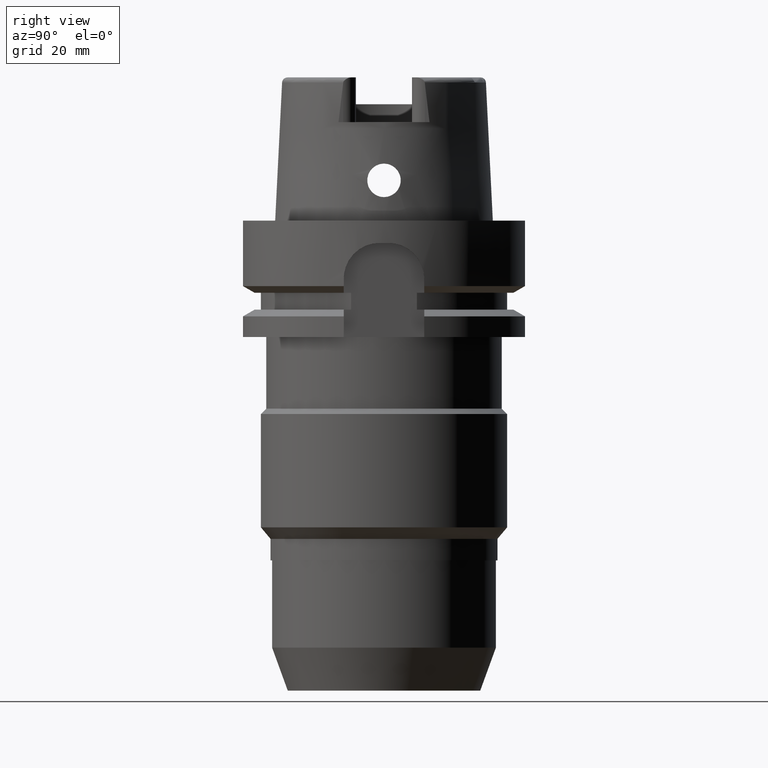
[diagram: clean part render]
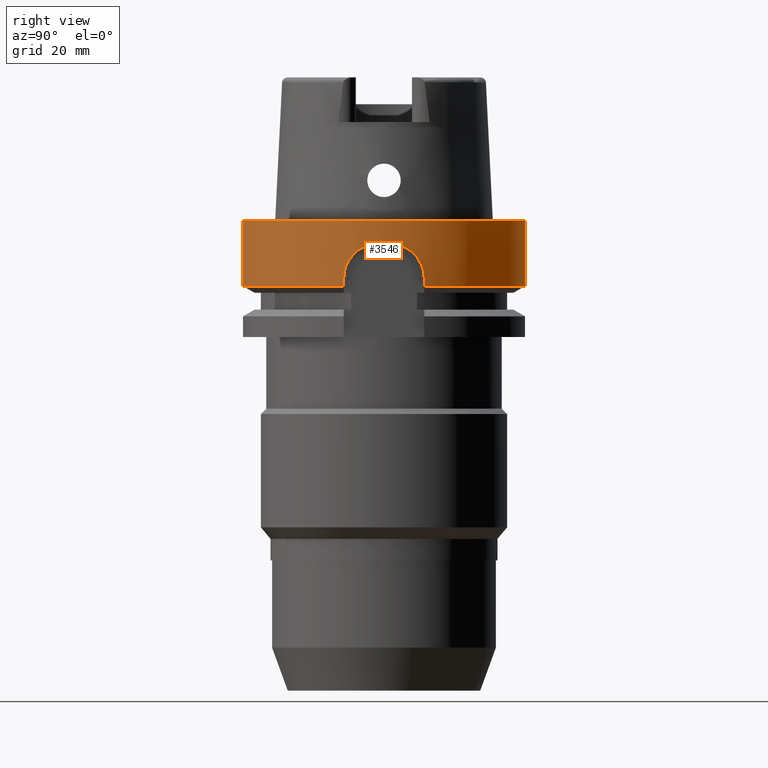
[diagram: same view with one face highlighted and labeled with its STEP entity id]
A machine part, right view. The second image highlights one B-rep face of the part: STEP entity #3546.
In plain terms, the highlighted cylindrical surface (partial cylindrical patch) has radius 31.5 mm, axis along (0, 0, 1).
Its self-contained STEP definition (entity closure, byte-faithful):
#626=CARTESIAN_POINT('',(0.E0,0.E0,-1.136868377216E-13));
#627=DIRECTION('',(0.E0,0.E0,-1.E0));
#628=DIRECTION('',(0.E0,1.E0,0.E0));
#629=AXIS2_PLACEMENT_3D('',#626,#627,#628);
#657=DIRECTION('',(0.E0,-2.672583210397E-14,-1.E0));
#658=VECTOR('',#657,1.462250092524E1);
#659=CARTESIAN_POINT('',(0.E0,-3.15E1,-8.526512829121E-14));
#660=LINE('',#659,#658);
#1315=CARTESIAN_POINT('',(0.E0,0.E0,-1.462250092524E1));
#1316=DIRECTION('',(0.E0,0.E0,1.E0));
#1317=DIRECTION('',(0.E0,-1.E0,0.E0));
#1318=AXIS2_PLACEMENT_3D('',#1315,#1316,#1317);
#1323=CARTESIAN_POINT('',(3.018691773962E1,-8.999999854527E0,
-1.462250209851E1));
#1333=DIRECTION('',(1.272503232136E-7,-4.268094046418E-7,9.999999999999E-1));
#1334=VECTOR('',#1333,1.622495340013E0);
#1335=CARTESIAN_POINT('',(3.018691748979E1,9.000000692496E0,-1.462249534001E1));
#1336=LINE('',#1335,#1334);
#1340=CARTESIAN_POINT('',(3.018691769625E1,9.E0,-1.3E1));
#1341=CARTESIAN_POINT('',(3.018691769625E1,9.E0,-1.248691377952E1));
#1342=CARTESIAN_POINT('',(3.021593894022E1,8.903508091917E0,-1.147442974820E1));
#1343=CARTESIAN_POINT('',(3.034506477146E1,8.458812328943E0,-9.965719010390E0));
#1344=CARTESIAN_POINT('',(3.054450458656E1,7.716811678109E0,-8.560160015191E0));
#1345=CARTESIAN_POINT('',(3.078002836758E1,6.727923629064E0,-7.342195009021E0));
#1346=CARTESIAN_POINT('',(3.102371502967E1,5.511494076109E0,-6.329960061749E0));
#1347=CARTESIAN_POINT('',(3.124373440280E1,4.102508232127E0,-5.567893933514E0));
#1348=CARTESIAN_POINT('',(3.140809752933E1,2.567449916373E0,-5.102223085451E0));
#1349=CARTESIAN_POINT('',(3.146734012406E1,1.528393590418E0,-5.E0));
#1350=CARTESIAN_POINT('',(3.148412298286E1,1.E0,-5.E0));
#1355=CARTESIAN_POINT('',(3.148412298286E1,-1.E0,-5.E0));
#1356=CARTESIAN_POINT('',(3.146773466333E1,-1.515971867478E0,-5.E0));
#1357=CARTESIAN_POINT('',(3.141034424321E1,-2.534761687145E0,
-5.097555985432E0));
#1358=CARTESIAN_POINT('',(3.125018359257E1,-4.051910910343E0,
-5.548007013188E0));
#1359=CARTESIAN_POINT('',(3.103296807235E1,-5.459440924039E0,
-6.295416498497E0));
#1360=CARTESIAN_POINT('',(3.079000900801E1,-6.682740940918E0,
-7.296493064988E0));
#1361=CARTESIAN_POINT('',(3.055236045309E1,-7.686283671771E0,
-8.513150223393E0));
#1362=CARTESIAN_POINT('',(3.034958060514E1,-8.442950343706E0,
-9.924196024710E0));
#1363=CARTESIAN_POINT('',(3.021688391214E1,-8.900405909197E0,
-1.145094150052E1));
#1364=CARTESIAN_POINT('',(3.018691769625E1,-9.E0,-1.247830285776E1));
#1365=CARTESIAN_POINT('',(3.018691769625E1,-9.E0,-1.3E1));
#1370=DIRECTION('',(2.673094224921E-8,8.965941478602E-8,-1.E0));
#1371=VECTOR('',#1370,1.622502098514E0);
#1372=CARTESIAN_POINT('',(3.018691769625E1,-9.E0,-1.3E1));
#1373=LINE('',#1372,#1371);
#1377=DIRECTION('',(0.E0,2.672583210397E-14,-1.E0));
#1378=VECTOR('',#1377,1.462250092524E1);
#1379=CARTESIAN_POINT('',(0.E0,3.15E1,-8.526512829121E-14));
#1380=LINE('',#1379,#1378);
#1398=CARTESIAN_POINT('',(0.E0,0.E0,-5.E0));
#1399=DIRECTION('',(0.E0,0.E0,1.E0));
#1400=DIRECTION('',(9.994959677099E-1,-3.174603174603E-2,0.E0));
#1401=AXIS2_PLACEMENT_3D('',#1398,#1399,#1400);
#1425=CARTESIAN_POINT('',(3.018691748979E1,9.000000692496E0,-1.462249534001E1));
#1430=CARTESIAN_POINT('',(0.E0,0.E0,-1.462250092524E1));
#1431=DIRECTION('',(0.E0,0.E0,1.E0));
#1432=DIRECTION('',(9.583148474999E-1,2.857142857143E-1,0.E0));
#1433=AXIS2_PLACEMENT_3D('',#1430,#1431,#1432);
#2658=VERTEX_POINT('',#1323);
#2659=CARTESIAN_POINT('',(3.018691769625E1,-9.E0,-1.3E1));
#2660=VERTEX_POINT('',#2659);
#2669=CARTESIAN_POINT('',(0.E0,-3.15E1,-1.462250092524E1));
#2670=VERTEX_POINT('',#2669);
#2671=VERTEX_POINT('',#1425);
#2672=CARTESIAN_POINT('',(0.E0,3.15E1,-1.462250092524E1));
#2673=VERTEX_POINT('',#2672);
#2675=CARTESIAN_POINT('',(0.E0,3.15E1,-8.526512829121E-14));
#2676=VERTEX_POINT('',#2675);
#2677=CARTESIAN_POINT('',(0.E0,-3.15E1,-1.136868377216E-13));
#2678=VERTEX_POINT('',#2677);
#2681=CARTESIAN_POINT('',(3.018691769625E1,9.E0,-1.3E1));
#2682=VERTEX_POINT('',#2681);
#2683=VERTEX_POINT('',#1350);
#2684=CARTESIAN_POINT('',(3.148412298286E1,-1.E0,-5.E0));
#2685=VERTEX_POINT('',#2684);
#3524=CARTESIAN_POINT('',(0.E0,0.E0,-1.1185E2));
#3525=DIRECTION('',(0.E0,0.E0,1.E0));
#3526=DIRECTION('',(0.E0,1.E0,0.E0));
#3527=AXIS2_PLACEMENT_3D('',#3524,#3525,#3526);
#3528=CYLINDRICAL_SURFACE('',#3527,3.15E1);
#3530=ORIENTED_EDGE('',*,*,#3529,.T.);
#3532=ORIENTED_EDGE('',*,*,#3531,.T.);
#3534=ORIENTED_EDGE('',*,*,#3533,.F.);
#3536=ORIENTED_EDGE('',*,*,#3535,.T.);
#3537=ORIENTED_EDGE('',*,*,#3501,.T.);
#3538=ORIENTED_EDGE('',*,*,#3516,.F.);
#3539=ORIENTED_EDGE('',*,*,#3074,.F.);
#3540=ORIENTED_EDGE('',*,*,#3053,.F.);
#3541=ORIENTED_EDGE('',*,*,#3071,.T.);
#3543=ORIENTED_EDGE('',*,*,#3542,.F.);
#3544=EDGE_LOOP('',(#3530,#3532,#3534,#3536,#3537,#3538,#3539,#3540,#3541,
#3543));
#3545=FACE_OUTER_BOUND('',#3544,.F.);
#630=CIRCLE('',#629,3.15E1);
#1319=CIRCLE('',#1318,3.15E1);
#1351=B_SPLINE_CURVE_WITH_KNOTS('',3,(#1340,#1341,#1342,#1343,#1344,#1345,#1346,
#1347,#1348,#1349,#1350),.UNSPECIFIED.,.F.,.F.,(4,1,1,1,1,1,1,1,4),(0.E0,
1.25E-1,2.5E-1,3.75E-1,5.E-1,6.25E-1,7.5E-1,8.75E-1,1.E0),.UNSPECIFIED.);
#1366=B_SPLINE_CURVE_WITH_KNOTS('',3,(#1355,#1356,#1357,#1358,#1359,#1360,#1361,
#1362,#1363,#1364,#1365),.UNSPECIFIED.,.F.,.F.,(4,1,1,1,1,1,1,1,4),(0.E0,
1.25E-1,2.5E-1,3.75E-1,5.E-1,6.25E-1,7.5E-1,8.75E-1,1.E0),.UNSPECIFIED.);
#1402=CIRCLE('',#1401,3.15E1);
#1434=CIRCLE('',#1433,3.15E1);
#3053=EDGE_CURVE('',#2676,#2678,#630,.T.);
#3071=EDGE_CURVE('',#2676,#2673,#1380,.T.);
#3074=EDGE_CURVE('',#2678,#2670,#660,.T.);
#3501=EDGE_CURVE('',#2660,#2658,#1373,.T.);
#3516=EDGE_CURVE('',#2670,#2658,#1319,.T.);
#3529=EDGE_CURVE('',#2671,#2682,#1336,.T.);
#3531=EDGE_CURVE('',#2682,#2683,#1351,.T.);
#3533=EDGE_CURVE('',#2685,#2683,#1402,.T.);
#3535=EDGE_CURVE('',#2685,#2660,#1366,.T.);
#3542=EDGE_CURVE('',#2671,#2673,#1434,.T.);
#3546=ADVANCED_FACE('',(#3545),#3528,.T.);